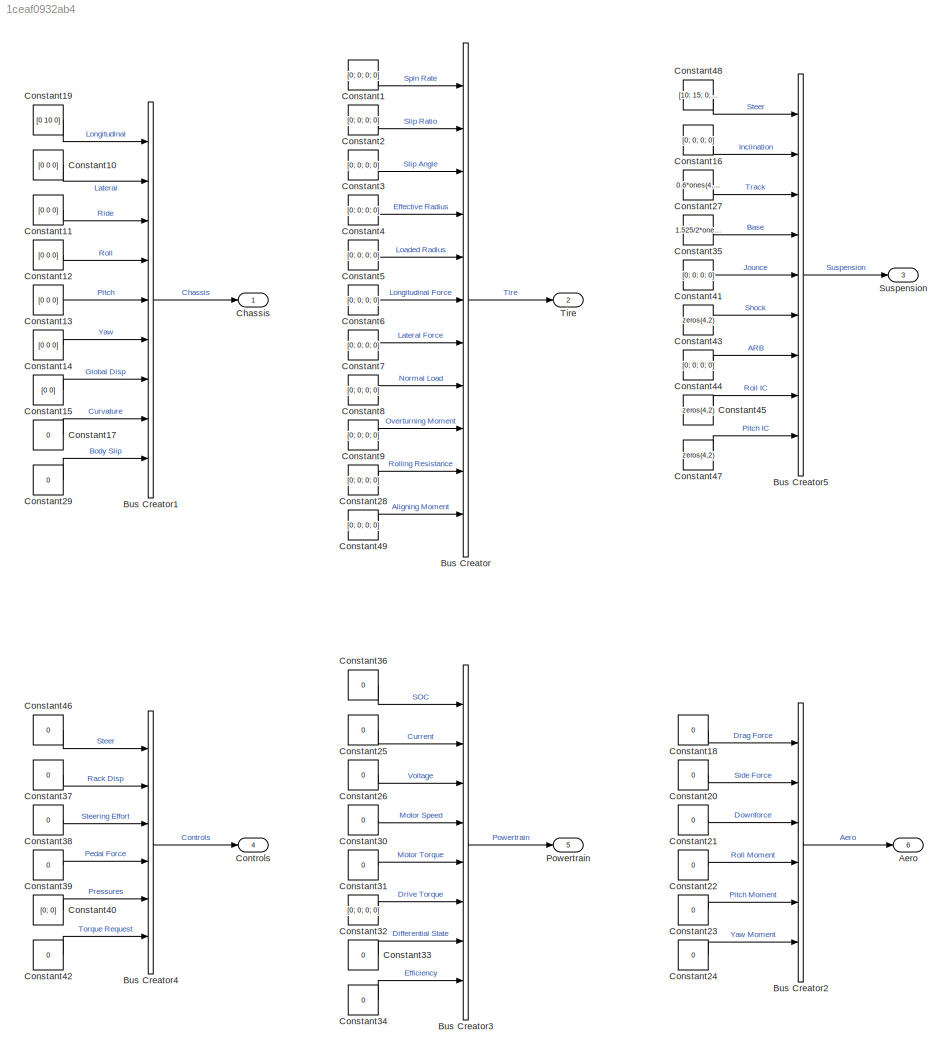
MODEL slx_1ceaf0932ab4
KIND model
CONFIG AbsTol = auto
CONFIG EnableMultiTasking = off
CONFIG FixedStep = auto
CONFIG MaxStep = auto
CONFIG MinStep = auto
CONFIG RelTol = 1e-3
CONFIG SampleTimeConstraint = Unconstrained
CONFIG SolverName = VariableStepAuto
CONFIG StartTime = 0.0
CONFIG StopTime = 10.0
BLOCK [Outport] Aero
  OutDataTypeStr = Bus: Aero
  Port = 6
BLOCK [BusCreator] Bus Creator
  DisplayOption = bar
  InheritFromInputs = on
  Inputs = 11
  Ports = [11, 1]
BLOCK [BusCreator] Bus Creator1
  DisplayOption = bar
  InheritFromInputs = on
  Inputs = 9
  Ports = [9, 1]
BLOCK [BusCreator] Bus Creator2
  DisplayOption = bar
  InheritFromInputs = on
  Inputs = 6
  Ports = [6, 1]
BLOCK [BusCreator] Bus Creator3
  DisplayOption = bar
  InheritFromInputs = on
  Inputs = 8
  Ports = [8, 1]
BLOCK [BusCreator] Bus Creator4
  DisplayOption = bar
  InheritFromInputs = on
  Inputs = 6
  Ports = [6, 1]
BLOCK [BusCreator] Bus Creator5
  DisplayOption = bar
  InheritFromInputs = on
  Inputs = 9
  Ports = [9, 1]
BLOCK [Outport] Chassis
  OutDataTypeStr = Bus: Chassis
BLOCK [Constant] Constant1
  Value = [0; 0; 0; 0]
BLOCK [Constant] Constant10
  Value = [0 0 0]
BLOCK [Constant] Constant11
  Value = [0 0 0]
BLOCK [Constant] Constant12
  Value = [0 0 0]
BLOCK [Constant] Constant13
  Value = [0 0 0]
BLOCK [Constant] Constant14
  Value = [0 0 0]
BLOCK [Constant] Constant15
  Value = [0 0]
BLOCK [Constant] Constant16
  Value = [0; 0; 0; 0]
BLOCK [Constant] Constant17
  Value = 0
BLOCK [Constant] Constant18
  Value = 0
BLOCK [Constant] Constant19
  Value = [0 10 0]
BLOCK [Constant] Constant2
  Value = [0; 0; 0; 0]
BLOCK [Constant] Constant20
  Value = 0
BLOCK [Constant] Constant21
  Value = 0
BLOCK [Constant] Constant22
  Value = 0
BLOCK [Constant] Constant23
  Value = 0
BLOCK [Constant] Constant24
  Value = 0
BLOCK [Constant] Constant25
  Value = 0
BLOCK [Constant] Constant26
  Value = 0
BLOCK [Constant] Constant27
  Value = 0.6*ones(4,1)
BLOCK [Constant] Constant28
  Value = [0; 0; 0; 0]
BLOCK [Constant] Constant29
  Value = 0
BLOCK [Constant] Constant3
  Value = [0; 0; 0; 0]
BLOCK [Constant] Constant30
  Value = 0
BLOCK [Constant] Constant31
  Value = 0
BLOCK [Constant] Constant32
  Value = [0; 0; 0; 0]
BLOCK [Constant] Constant33
  Value = 0
BLOCK [Constant] Constant34
  Value = 0
BLOCK [Constant] Constant35
  Value = 1.525/2*ones(4,1)
BLOCK [Constant] Constant36
  Value = 0
BLOCK [Constant] Constant37
  Value = 0
BLOCK [Constant] Constant38
  Value = 0
BLOCK [Constant] Constant39
  Value = 0
BLOCK [Constant] Constant4
  Value = [0; 0; 0; 0]
BLOCK [Constant] Constant40
  Value = [0; 0]
BLOCK [Constant] Constant41
  Value = [0; 0; 0; 0]
BLOCK [Constant] Constant42
  Value = 0
BLOCK [Constant] Constant43
  Value = zeros(4,2)
BLOCK [Constant] Constant44
  Value = [0; 0; 0; 0]
BLOCK [Constant] Constant45
  Value = zeros(4,2)
BLOCK [Constant] Constant46
  Value = 0
BLOCK [Constant] Constant47
  Value = zeros(4,2)
BLOCK [Constant] Constant48
  Value = [10; 15; 0; 0]
BLOCK [Constant] Constant49
  Value = [0; 0; 0; 0]
BLOCK [Constant] Constant5
  Value = [0; 0; 0; 0]
BLOCK [Constant] Constant6
  Value = [0; 0; 0; 0]
BLOCK [Constant] Constant7
  Value = [0; 0; 0; 0]
BLOCK [Constant] Constant8
  Value = [0; 0; 0; 0]
BLOCK [Constant] Constant9
  Value = [0; 0; 0; 0]
BLOCK [Outport] Controls
  OutDataTypeStr = Bus: Controls
  Port = 4
BLOCK [Outport] Powertrain
  OutDataTypeStr = Bus: Powertrain
  Port = 5
BLOCK [Outport] Suspension
  OutDataTypeStr = Bus: Suspension
  Port = 3
BLOCK [Outport] Tire
  OutDataTypeStr = Bus: Tire
  Port = 2
LINE Bus Creator1:1 -> Chassis:1
LINE Bus Creator2:1 -> Aero:1
LINE Bus Creator3:1 -> Powertrain:1
LINE Bus Creator4:1 -> Controls:1
LINE Bus Creator5:1 -> Suspension:1
LINE Bus Creator:1 -> Tire:1
LINE Constant10:1 -> Bus Creator1:2
LINE Constant11:1 -> Bus Creator1:3
LINE Constant12:1 -> Bus Creator1:4
LINE Constant13:1 -> Bus Creator1:5
LINE Constant14:1 -> Bus Creator1:6
LINE Constant15:1 -> Bus Creator1:7
LINE Constant16:1 -> Bus Creator5:2
LINE Constant17:1 -> Bus Creator1:8
LINE Constant18:1 -> Bus Creator2:1
LINE Constant19:1 -> Bus Creator1:1
LINE Constant1:1 -> Bus Creator:1
LINE Constant20:1 -> Bus Creator2:2
LINE Constant21:1 -> Bus Creator2:3
LINE Constant22:1 -> Bus Creator2:4
LINE Constant23:1 -> Bus Creator2:5
LINE Constant24:1 -> Bus Creator2:6
LINE Constant25:1 -> Bus Creator3:2
LINE Constant26:1 -> Bus Creator3:3
LINE Constant27:1 -> Bus Creator5:3
LINE Constant28:1 -> Bus Creator:10
LINE Constant29:1 -> Bus Creator1:9
LINE Constant2:1 -> Bus Creator:2
LINE Constant30:1 -> Bus Creator3:4
LINE Constant31:1 -> Bus Creator3:5
LINE Constant32:1 -> Bus Creator3:6
LINE Constant33:1 -> Bus Creator3:7
LINE Constant34:1 -> Bus Creator3:8
LINE Constant35:1 -> Bus Creator5:4
LINE Constant36:1 -> Bus Creator3:1
LINE Constant37:1 -> Bus Creator4:2
LINE Constant38:1 -> Bus Creator4:3
LINE Constant39:1 -> Bus Creator4:4
LINE Constant3:1 -> Bus Creator:3
LINE Constant40:1 -> Bus Creator4:5
LINE Constant41:1 -> Bus Creator5:5
LINE Constant42:1 -> Bus Creator4:6
LINE Constant43:1 -> Bus Creator5:6
LINE Constant44:1 -> Bus Creator5:7
LINE Constant45:1 -> Bus Creator5:8
LINE Constant46:1 -> Bus Creator4:1
LINE Constant47:1 -> Bus Creator5:9
LINE Constant48:1 -> Bus Creator5:1
LINE Constant49:1 -> Bus Creator:11
LINE Constant4:1 -> Bus Creator:4
LINE Constant5:1 -> Bus Creator:5
LINE Constant6:1 -> Bus Creator:6
LINE Constant7:1 -> Bus Creator:7
LINE Constant8:1 -> Bus Creator:8
LINE Constant9:1 -> Bus Creator:9
